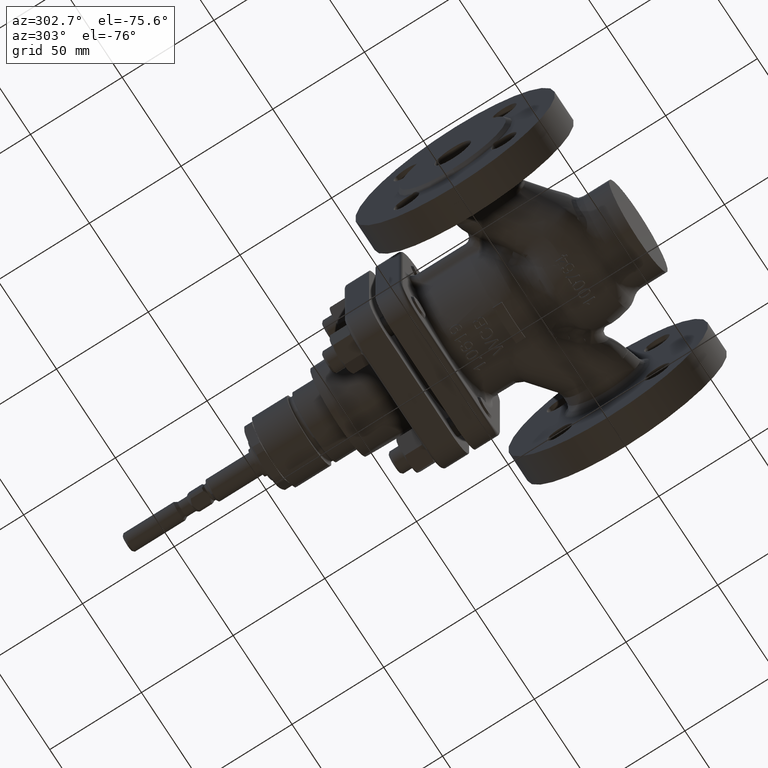
[diagram: clean part render]
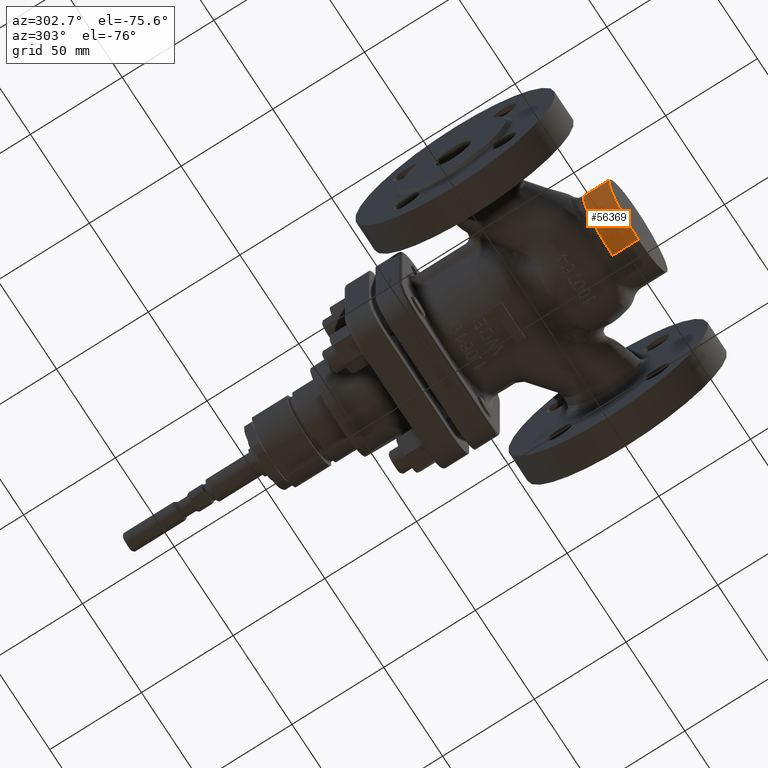
[diagram: same view with one face highlighted and labeled with its STEP entity id]
A machine part, auxiliary view. The second image highlights one B-rep face of the part: STEP entity #56369.
In plain terms, the highlighted cylindrical surface (partial cylindrical patch) has radius 25 mm, axis along (-0, -1, -0).
Its self-contained STEP definition (entity closure, byte-faithful):
#3388 = DIRECTION ( 'NONE',  ( 0.0000000000000000000, 0.0000000000000000000, -1.000000000000000000 ) ) ;
#3893 = CARTESIAN_POINT ( 'NONE',  ( 3.061616997868383000E-015, 500000.0000000000600, 25.00000000000000000 ) ) ;
#8666 = AXIS2_PLACEMENT_3D ( 'NONE', #35680, #116618, #23562 ) ;
#11145 = CIRCLE ( 'NONE', #119526, 25.00000000000000000 ) ;
#15036 = DIRECTION ( 'NONE',  ( -0.0000000000000000000, -1.000000000000000000, -0.0000000000000000000 ) ) ;
#21277 = CARTESIAN_POINT ( 'NONE',  ( 0.0000000000000000000, -53.00000000000000000, 0.0000000000000000000 ) ) ;
#23562 = DIRECTION ( 'NONE',  ( 0.0000000000000000000, 0.0000000000000000000, -1.000000000000000000 ) ) ;
#26165 = CYLINDRICAL_SURFACE ( 'NONE', #8666, 25.00000000000000000 ) ;
#26632 = VECTOR ( 'NONE', #98037, 1000.000000000000000 ) ;
#32884 = DIRECTION ( 'NONE',  ( 0.0000000000000000000, 0.0000000000000000000, 1.000000000000000000 ) ) ;
#35234 = CARTESIAN_POINT ( 'NONE',  ( 0.0000000000000000000, -39.00292544091144000, -25.00000000000000000 ) ) ;
#35680 = CARTESIAN_POINT ( 'NONE',  ( 0.0000000000000000000, 500000.0000000000600, 0.0000000000000000000 ) ) ;
#35841 = VERTEX_POINT ( 'NONE', #70503 ) ;
#40088 = ORIENTED_EDGE ( 'NONE', *, *, #93633, .T. ) ;
#42561 = VECTOR ( 'NONE', #15036, 1000.000000000000000 ) ;
#46158 = CIRCLE ( 'NONE', #102619, 25.00000000000000000 ) ;
#46869 = ORIENTED_EDGE ( 'NONE', *, *, #53240, .F. ) ;
#49289 = VERTEX_POINT ( 'NONE', #69968 ) ;
#51776 = CARTESIAN_POINT ( 'NONE',  ( 3.061616997868383000E-015, -53.00000000000000000, 25.00000000000000000 ) ) ;
#52346 = ORIENTED_EDGE ( 'NONE', *, *, #69526, .T. ) ;
#52954 = EDGE_CURVE ( 'NONE', #49289, #118413, #46158, .T. ) ;
#53240 = EDGE_CURVE ( 'NONE', #49289, #81012, #73414, .T. ) ;
#56369 = ADVANCED_FACE ( 'NONE', ( #118472 ), #26165, .T. ) ;
#69526 = EDGE_CURVE ( 'NONE', #35841, #81012, #11145, .T. ) ;
#69968 = CARTESIAN_POINT ( 'NONE',  ( 3.061616997868383000E-015, -39.00292544091144000, 25.00000000000000000 ) ) ;
#70503 = CARTESIAN_POINT ( 'NONE',  ( 0.0000000000000000000, -53.00000000000000000, -25.00000000000000000 ) ) ;
#72781 = DIRECTION ( 'NONE',  ( 0.0000000000000000000, -1.000000000000000000, 0.0000000000000000000 ) ) ;
#73414 = LINE ( 'NONE', #3893, #42561 ) ;
#81012 = VERTEX_POINT ( 'NONE', #51776 ) ;
#93633 = EDGE_CURVE ( 'NONE', #118413, #35841, #149777, .T. ) ;
#98037 = DIRECTION ( 'NONE',  ( -0.0000000000000000000, -1.000000000000000000, -0.0000000000000000000 ) ) ;
#101280 = EDGE_LOOP ( 'NONE', ( #46869, #133603, #40088, #52346 ) ) ;
#102229 = DIRECTION ( 'NONE',  ( 0.0000000000000000000, 1.000000000000000000, 0.0000000000000000000 ) ) ;
#102619 = AXIS2_PLACEMENT_3D ( 'NONE', #142089, #72781, #3388 ) ;
#116618 = DIRECTION ( 'NONE',  ( -0.0000000000000000000, -1.000000000000000000, -0.0000000000000000000 ) ) ;
#118413 = VERTEX_POINT ( 'NONE', #35234 ) ;
#118472 = FACE_OUTER_BOUND ( 'NONE', #101280, .T. ) ;
#119526 = AXIS2_PLACEMENT_3D ( 'NONE', #21277, #102229, #32884 ) ;
#133603 = ORIENTED_EDGE ( 'NONE', *, *, #52954, .T. ) ;
#140307 = CARTESIAN_POINT ( 'NONE',  ( 0.0000000000000000000, 500000.0000000000600, -25.00000000000000000 ) ) ;
#142089 = CARTESIAN_POINT ( 'NONE',  ( 0.0000000000000000000, -39.00292544091144000, 0.0000000000000000000 ) ) ;
#149777 = LINE ( 'NONE', #140307, #26632 ) ;